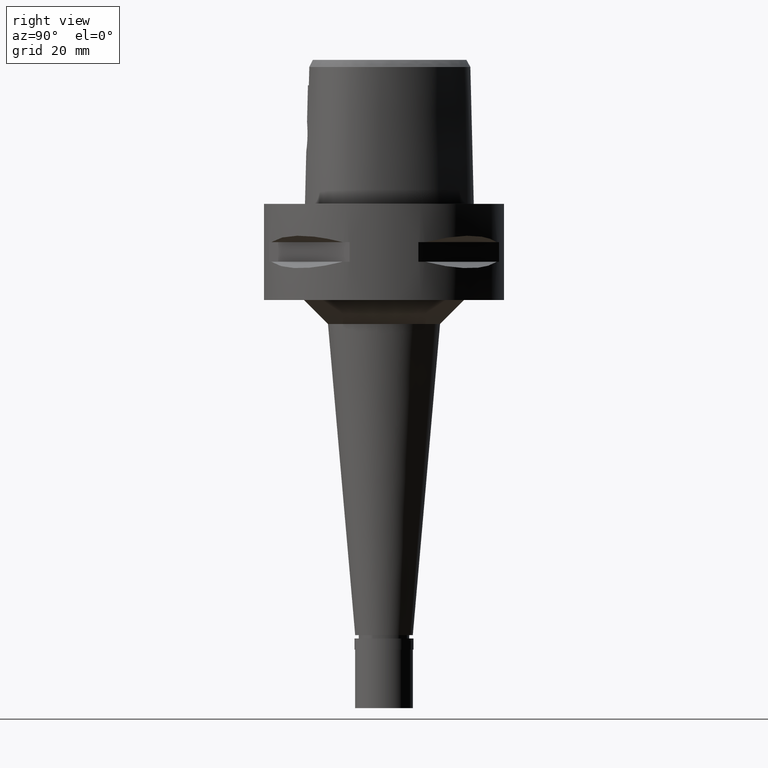
[diagram: clean part render]
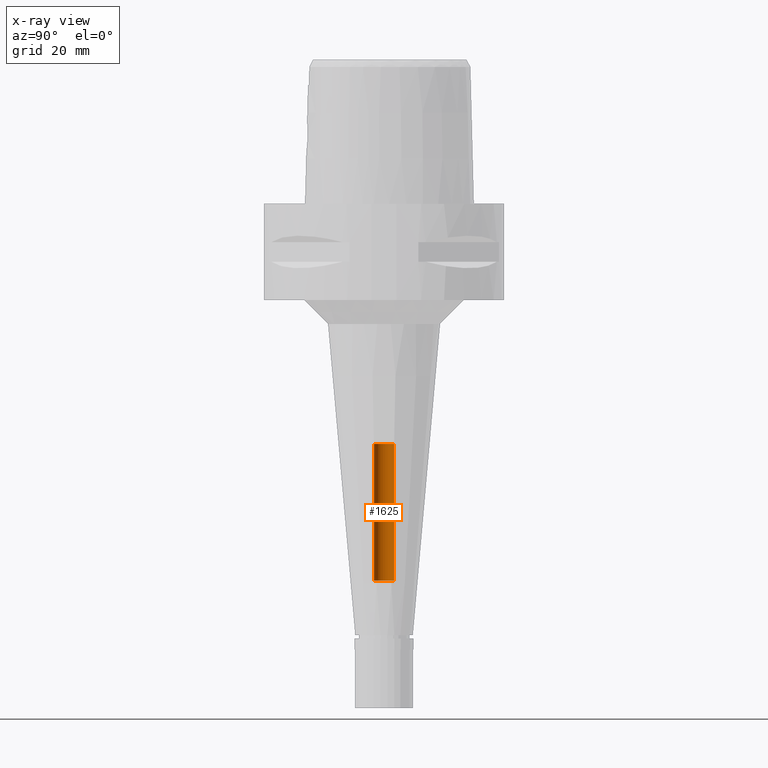
[diagram: x-ray — body ghosted, one internal face saturated and labeled with its STEP entity id]
A machine part, right view, then the same camera in x-ray: the body is ghosted and one INTERNAL B-rep face — a face not visible from any outside direction — is saturated and labeled: STEP entity #1625.
In plain terms, the highlighted cylindrical surface (edge-blend (fillet) strip) has radius 2.1 mm, axis along (0, 0, -1).
Its self-contained STEP definition (entity closure, byte-faithful):
#17 = VECTOR ( 'NONE', #1565, 1000.000000000000000 ) ;
#45 = DIRECTION ( 'NONE',  ( 0.0000000000000000000, 0.0000000000000000000, -1.000000000000000000 ) ) ;
#56 = DIRECTION ( 'NONE',  ( 0.0000000000000000000, -1.000000000000000000, 0.0000000000000000000 ) ) ;
#84 = CARTESIAN_POINT ( 'NONE',  ( 0.0000000000000000000, 1.286491462503999938E-14, -50.00000000000000000 ) ) ;
#85 = CARTESIAN_POINT ( 'NONE',  ( 0.0000000000000000000, 2.100000000000000089, -78.50000000000000000 ) ) ;
#895 = LINE ( 'NONE', #85, #3504 ) ;
#898 = FACE_OUTER_BOUND ( 'NONE', #1606, .T. ) ;
#1025 = CIRCLE ( 'NONE', #3749, 2.100000000000000089 ) ;
#1101 = VERTEX_POINT ( 'NONE', #4178 ) ;
#1175 = CARTESIAN_POINT ( 'NONE',  ( 0.0000000000000000000, -2.100000000000000089, -78.50000000000000000 ) ) ;
#1210 = ORIENTED_EDGE ( 'NONE', *, *, #2163, .T. ) ;
#1409 = AXIS2_PLACEMENT_3D ( 'NONE', #4496, #45, #4170 ) ;
#1565 = DIRECTION ( 'NONE',  ( 0.0000000000000000000, 0.0000000000000000000, 1.000000000000000000 ) ) ;
#1575 = DIRECTION ( 'NONE',  ( 0.0000000000000000000, 0.0000000000000000000, 1.000000000000000000 ) ) ;
#1606 = EDGE_LOOP ( 'NONE', ( #3461, #1944, #1210, #4597 ) ) ;
#1625 = ADVANCED_FACE ( 'NONE', ( #898 ), #4193, .F. ) ;
#1944 = ORIENTED_EDGE ( 'NONE', *, *, #2257, .F. ) ;
#1945 = DIRECTION ( 'NONE',  ( 0.0000000000000000000, 0.0000000000000000000, -1.000000000000000000 ) ) ;
#2163 = EDGE_CURVE ( 'NONE', #4209, #4006, #3136, .T. ) ;
#2257 = EDGE_CURVE ( 'NONE', #4209, #1101, #3399, .T. ) ;
#2528 = CARTESIAN_POINT ( 'NONE',  ( 0.0000000000000000000, -2.100000000000000089, -78.50000000000000000 ) ) ;
#2905 = EDGE_CURVE ( 'NONE', #3900, #1101, #1025, .T. ) ;
#3136 = CIRCLE ( 'NONE', #3376, 2.100000000000000089 ) ;
#3376 = AXIS2_PLACEMENT_3D ( 'NONE', #3833, #1945, #56 ) ;
#3399 = LINE ( 'NONE', #1175, #17 ) ;
#3461 = ORIENTED_EDGE ( 'NONE', *, *, #2905, .T. ) ;
#3488 = CARTESIAN_POINT ( 'NONE',  ( 0.0000000000000000000, 2.100000000000000089, -78.50000000000000000 ) ) ;
#3504 = VECTOR ( 'NONE', #1575, 1000.000000000000000 ) ;
#3749 = AXIS2_PLACEMENT_3D ( 'NONE', #84, #4568, #4219 ) ;
#3818 = CARTESIAN_POINT ( 'NONE',  ( 0.0000000000000000000, 2.100000000000000089, -50.00000000000000000 ) ) ;
#3833 = CARTESIAN_POINT ( 'NONE',  ( 0.0000000000000000000, 1.286491462503999938E-14, -78.50000000000000000 ) ) ;
#3900 = VERTEX_POINT ( 'NONE', #3818 ) ;
#4006 = VERTEX_POINT ( 'NONE', #3488 ) ;
#4170 = DIRECTION ( 'NONE',  ( 0.0000000000000000000, -1.000000000000000000, 0.0000000000000000000 ) ) ;
#4178 = CARTESIAN_POINT ( 'NONE',  ( 0.0000000000000000000, -2.100000000000000089, -50.00000000000000000 ) ) ;
#4193 = CYLINDRICAL_SURFACE ( 'NONE', #1409, 2.100000000000000089 ) ;
#4209 = VERTEX_POINT ( 'NONE', #2528 ) ;
#4219 = DIRECTION ( 'NONE',  ( 0.0000000000000000000, 1.000000000000000000, 0.0000000000000000000 ) ) ;
#4496 = CARTESIAN_POINT ( 'NONE',  ( 0.0000000000000000000, 1.286491462503999938E-14, 5.049999999999999822 ) ) ;
#4543 = EDGE_CURVE ( 'NONE', #4006, #3900, #895, .T. ) ;
#4568 = DIRECTION ( 'NONE',  ( 0.0000000000000000000, 0.0000000000000000000, 1.000000000000000000 ) ) ;
#4597 = ORIENTED_EDGE ( 'NONE', *, *, #4543, .T. ) ;